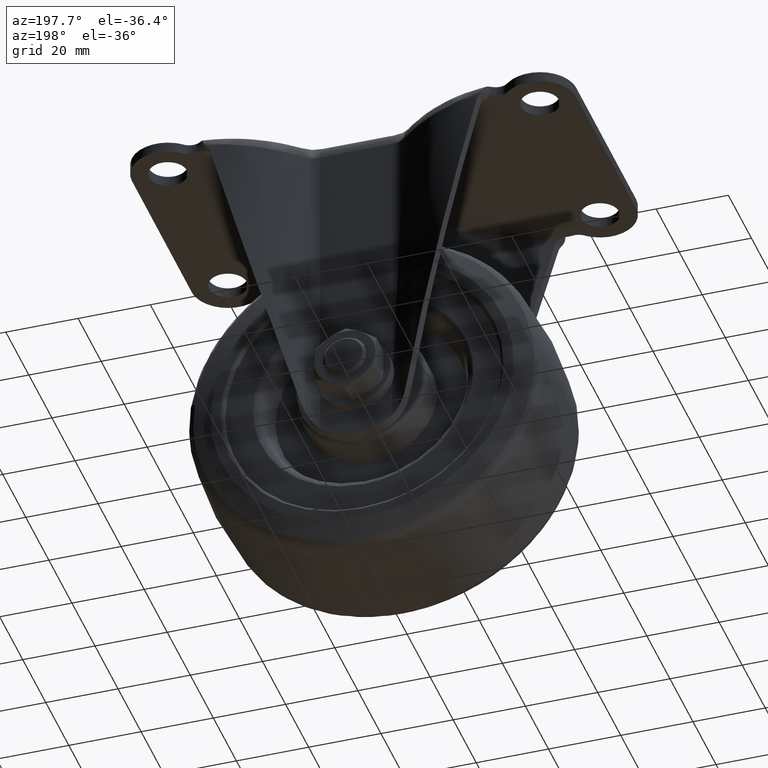
[diagram: clean part render]
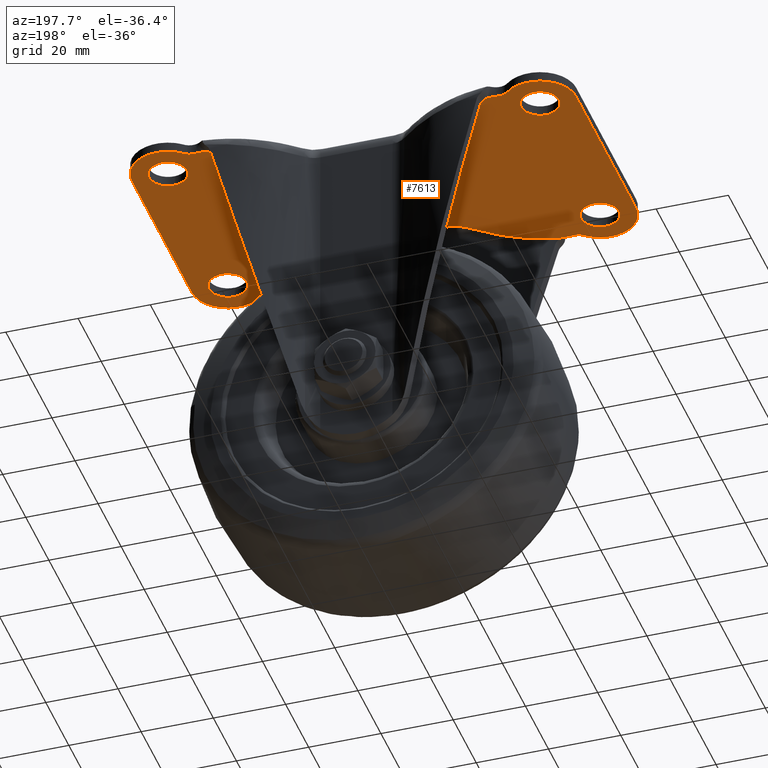
[diagram: same view with one face highlighted and labeled with its STEP entity id]
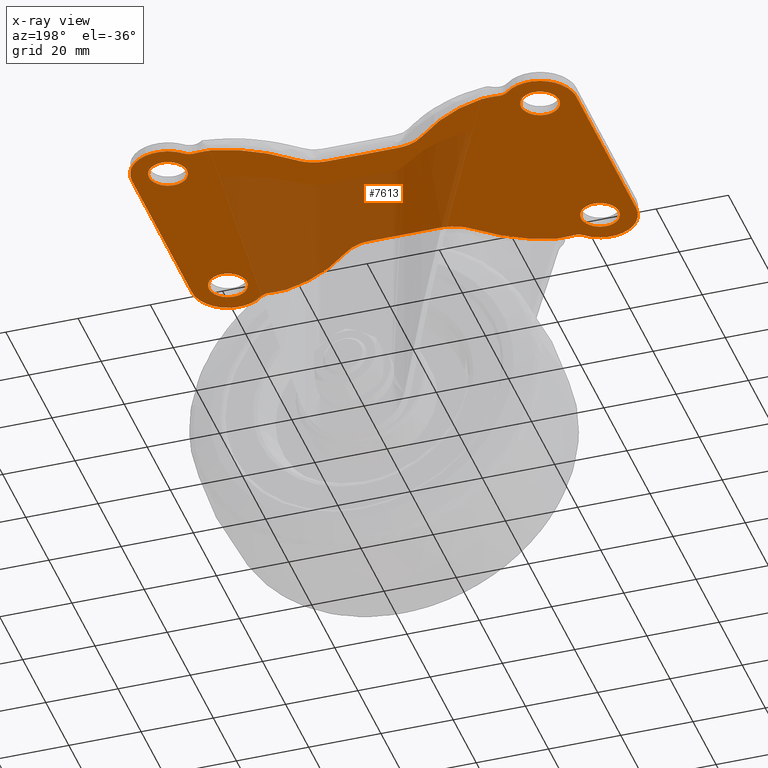
[diagram: x-ray of the same camera — body ghosted, the highlighted face saturated]
A machine part, auxiliary view. The second image highlights one B-rep face of the part: STEP entity #7613.
The next image is the same camera in x-ray: the body ghosted, the highlighted face saturated — about 35% of this face is hidden behind the body in this view.
In plain terms, the highlighted face is a freeform B-spline surface patch.
Its self-contained STEP definition (entity closure, byte-faithful):
#3579=CARTESIAN_POINT('',(-51.179495167164532,31.240207691697830,-2.900000000000000));
#3580=VERTEX_POINT('',#3579);
#3586=CARTESIAN_POINT('',(-46.250000000000000,26.0,-2.900000000000000));
#3587=VERTEX_POINT('',#3586);
#3588=CARTESIAN_POINT('',(-46.250000000000000,26.0,-2.900000000000000));
#3589=CARTESIAN_POINT('',(-46.250000000000000,30.938706850992908,-2.900000000000000));
#3590=CARTESIAN_POINT('',(-51.179495167164539,31.240207691697826,-2.900000000000000));
#3598=(BOUNDED_CURVE()B_SPLINE_CURVE(2,(#3588,#3589,#3590),.UNSPECIFIED.,.F.,.U.)B_SPLINE_CURVE_WITH_KNOTS((3,3),(0.500000000000000,0.739332962232832),.UNSPECIFIED.)CURVE()GEOMETRIC_REPRESENTATION_ITEM()RATIONAL_B_SPLINE_CURVE((1.0,0.719603993293870,0.976072041653621))REPRESENTATION_ITEM(''));
#3599=EDGE_CURVE('',#3587,#3580,#3598,.T.);
#3601=CARTESIAN_POINT('',(-51.820504832835468,20.759792308302170,-2.900000000000000));
#3602=VERTEX_POINT('',#3601);
#3603=CARTESIAN_POINT('',(-51.820504832835468,20.759792308302170,-2.900000000000000));
#3604=CARTESIAN_POINT('',(-51.660402007456717,20.749999999999993,-2.900000000000000));
#3605=CARTESIAN_POINT('',(-51.500000000000000,20.750000000000000,-2.900000000000000));
#3606=CARTESIAN_POINT('',(-46.249999999999993,20.750000000000000,-2.900000000000001));
#3607=CARTESIAN_POINT('',(-46.250000000000000,26.0,-2.900000000000000));
#3615=(BOUNDED_CURVE()B_SPLINE_CURVE(2,(#3603,#3604,#3605,#3606,#3607),.UNSPECIFIED.,.F.,.U.)B_SPLINE_CURVE_WITH_KNOTS((3,2,3),(0.239332962232832,0.250000000000000,0.500000000000000),.UNSPECIFIED.)CURVE()GEOMETRIC_REPRESENTATION_ITEM()RATIONAL_B_SPLINE_CURVE((0.976072041653621,0.987502787892678,1.0,0.707106781186547,1.0))REPRESENTATION_ITEM(''));
#3616=EDGE_CURVE('',#3602,#3587,#3615,.T.);
#3660=CARTESIAN_POINT('',(-56.749999999999993,26.0,-2.900000000000000));
#3661=VERTEX_POINT('',#3660);
#3662=CARTESIAN_POINT('',(-56.749999999999993,26.0,-2.900000000000000));
#3663=CARTESIAN_POINT('',(-56.749999999999986,21.061293149007096,-2.900000000000001));
#3664=CARTESIAN_POINT('',(-51.820504832835468,20.759792308302167,-2.900000000000001));
#3672=(BOUNDED_CURVE()B_SPLINE_CURVE(2,(#3662,#3663,#3664),.UNSPECIFIED.,.F.,.U.)B_SPLINE_CURVE_WITH_KNOTS((3,3),(0.0,0.239332962232832),.UNSPECIFIED.)CURVE()GEOMETRIC_REPRESENTATION_ITEM()RATIONAL_B_SPLINE_CURVE((1.0,0.719603993293869,0.976072041653621))REPRESENTATION_ITEM(''));
#3673=EDGE_CURVE('',#3661,#3602,#3672,.T.);
#3675=CARTESIAN_POINT('',(-51.179495167164539,31.240207691697833,-2.900000000000000));
#3676=CARTESIAN_POINT('',(-51.339597992543283,31.250000000000000,-2.900000000000000));
#3677=CARTESIAN_POINT('',(-51.500000000000000,31.250000000000000,-2.900000000000000));
#3678=CARTESIAN_POINT('',(-56.749999999999993,31.250000000000004,-2.900000000000001));
#3679=CARTESIAN_POINT('',(-56.749999999999993,26.0,-2.900000000000000));
#3687=(BOUNDED_CURVE()B_SPLINE_CURVE(2,(#3675,#3676,#3677,#3678,#3679),.UNSPECIFIED.,.F.,.U.)B_SPLINE_CURVE_WITH_KNOTS((3,2,3),(0.739332962232832,0.750000000000000,1.0),.UNSPECIFIED.)CURVE()GEOMETRIC_REPRESENTATION_ITEM()RATIONAL_B_SPLINE_CURVE((0.976072041653621,0.987502787892678,1.0,0.707106781186547,1.0))REPRESENTATION_ITEM(''));
#3688=EDGE_CURVE('',#3580,#3661,#3687,.T.);
#3761=CARTESIAN_POINT('',(-51.179495167164532,-20.759792308302170,-2.900000000000000));
#3762=VERTEX_POINT('',#3761);
#3768=CARTESIAN_POINT('',(-46.250000000000000,-26.0,-2.900000000000000));
#3769=VERTEX_POINT('',#3768);
#3770=CARTESIAN_POINT('',(-46.250000000000000,-26.0,-2.900000000000000));
#3771=CARTESIAN_POINT('',(-46.250000000000000,-21.061293149007092,-2.900000000000000));
#3772=CARTESIAN_POINT('',(-51.179495167164539,-20.759792308302170,-2.900000000000000));
#3780=(BOUNDED_CURVE()B_SPLINE_CURVE(2,(#3770,#3771,#3772),.UNSPECIFIED.,.F.,.U.)B_SPLINE_CURVE_WITH_KNOTS((3,3),(0.500000000000000,0.739332962232832),.UNSPECIFIED.)CURVE()GEOMETRIC_REPRESENTATION_ITEM()RATIONAL_B_SPLINE_CURVE((1.0,0.719603993293870,0.976072041653621))REPRESENTATION_ITEM(''));
#3781=EDGE_CURVE('',#3769,#3762,#3780,.T.);
#3783=CARTESIAN_POINT('',(-51.820504832835468,-31.240207691697830,-2.900000000000000));
#3784=VERTEX_POINT('',#3783);
#3785=CARTESIAN_POINT('',(-51.820504832835468,-31.240207691697826,-2.900000000000000));
#3786=CARTESIAN_POINT('',(-51.660402007456717,-31.250000000000000,-2.900000000000000));
#3787=CARTESIAN_POINT('',(-51.500000000000000,-31.250000000000000,-2.900000000000000));
#3788=CARTESIAN_POINT('',(-46.249999999999993,-31.250000000000004,-2.900000000000001));
#3789=CARTESIAN_POINT('',(-46.250000000000000,-26.0,-2.900000000000000));
#3797=(BOUNDED_CURVE()B_SPLINE_CURVE(2,(#3785,#3786,#3787,#3788,#3789),.UNSPECIFIED.,.F.,.U.)B_SPLINE_CURVE_WITH_KNOTS((3,2,3),(0.239332962232832,0.250000000000000,0.500000000000000),.UNSPECIFIED.)CURVE()GEOMETRIC_REPRESENTATION_ITEM()RATIONAL_B_SPLINE_CURVE((0.976072041653621,0.987502787892678,1.0,0.707106781186547,1.0))REPRESENTATION_ITEM(''));
#3798=EDGE_CURVE('',#3784,#3769,#3797,.T.);
#3842=CARTESIAN_POINT('',(-56.749999999999993,-26.0,-2.900000000000000));
#3843=VERTEX_POINT('',#3842);
#3844=CARTESIAN_POINT('',(-56.749999999999993,-26.0,-2.900000000000000));
#3845=CARTESIAN_POINT('',(-56.749999999999986,-30.938706850992904,-2.900000000000001));
#3846=CARTESIAN_POINT('',(-51.820504832835482,-31.240207691697840,-2.900000000000001));
#3854=(BOUNDED_CURVE()B_SPLINE_CURVE(2,(#3844,#3845,#3846),.UNSPECIFIED.,.F.,.U.)B_SPLINE_CURVE_WITH_KNOTS((3,3),(0.0,0.239332962232832),.UNSPECIFIED.)CURVE()GEOMETRIC_REPRESENTATION_ITEM()RATIONAL_B_SPLINE_CURVE((1.0,0.719603993293869,0.976072041653621))REPRESENTATION_ITEM(''));
#3855=EDGE_CURVE('',#3843,#3784,#3854,.T.);
#3857=CARTESIAN_POINT('',(-51.179495167164539,-20.759792308302170,-2.900000000000000));
#3858=CARTESIAN_POINT('',(-51.339597992543283,-20.750000000000000,-2.900000000000000));
#3859=CARTESIAN_POINT('',(-51.500000000000000,-20.750000000000000,-2.900000000000000));
#3860=CARTESIAN_POINT('',(-56.749999999999993,-20.750000000000000,-2.900000000000001));
#3861=CARTESIAN_POINT('',(-56.749999999999993,-26.0,-2.900000000000000));
#3869=(BOUNDED_CURVE()B_SPLINE_CURVE(2,(#3857,#3858,#3859,#3860,#3861),.UNSPECIFIED.,.F.,.U.)B_SPLINE_CURVE_WITH_KNOTS((3,2,3),(0.739332962232832,0.750000000000000,1.0),.UNSPECIFIED.)CURVE()GEOMETRIC_REPRESENTATION_ITEM()RATIONAL_B_SPLINE_CURVE((0.976072041653621,0.987502787892678,1.0,0.707106781186547,1.0))REPRESENTATION_ITEM(''));
#3870=EDGE_CURVE('',#3762,#3843,#3869,.T.);
#3943=CARTESIAN_POINT('',(51.820504832835468,31.240207691697830,-2.900000000000000));
#3944=VERTEX_POINT('',#3943);
#3950=CARTESIAN_POINT('',(56.749999999999993,26.0,-2.900000000000000));
#3951=VERTEX_POINT('',#3950);
#3952=CARTESIAN_POINT('',(56.749999999999993,26.0,-2.900000000000000));
#3953=CARTESIAN_POINT('',(56.750000000000007,30.938706850992908,-2.900000000000000));
#3954=CARTESIAN_POINT('',(51.820504832835468,31.240207691697826,-2.900000000000000));
#3962=(BOUNDED_CURVE()B_SPLINE_CURVE(2,(#3952,#3953,#3954),.UNSPECIFIED.,.F.,.U.)B_SPLINE_CURVE_WITH_KNOTS((3,3),(0.500000000000000,0.739332962232832),.UNSPECIFIED.)CURVE()GEOMETRIC_REPRESENTATION_ITEM()RATIONAL_B_SPLINE_CURVE((1.0,0.719603993293870,0.976072041653621))REPRESENTATION_ITEM(''));
#3963=EDGE_CURVE('',#3951,#3944,#3962,.T.);
#3965=CARTESIAN_POINT('',(51.179495167164532,20.759792308302170,-2.900000000000000));
#3966=VERTEX_POINT('',#3965);
#3967=CARTESIAN_POINT('',(51.179495167164532,20.759792308302167,-2.900000000000000));
#3968=CARTESIAN_POINT('',(51.339597992543283,20.749999999999993,-2.900000000000000));
#3969=CARTESIAN_POINT('',(51.500000000000000,20.750000000000000,-2.900000000000000));
#3970=CARTESIAN_POINT('',(56.749999999999993,20.750000000000000,-2.900000000000001));
#3971=CARTESIAN_POINT('',(56.749999999999993,26.0,-2.900000000000000));
#3979=(BOUNDED_CURVE()B_SPLINE_CURVE(2,(#3967,#3968,#3969,#3970,#3971),.UNSPECIFIED.,.F.,.U.)B_SPLINE_CURVE_WITH_KNOTS((3,2,3),(0.239332962232832,0.250000000000000,0.500000000000000),.UNSPECIFIED.)CURVE()GEOMETRIC_REPRESENTATION_ITEM()RATIONAL_B_SPLINE_CURVE((0.976072041653621,0.987502787892678,1.0,0.707106781186547,1.0))REPRESENTATION_ITEM(''));
#3980=EDGE_CURVE('',#3966,#3951,#3979,.T.);
#4024=CARTESIAN_POINT('',(46.250000000000000,26.0,-2.900000000000000));
#4025=VERTEX_POINT('',#4024);
#4026=CARTESIAN_POINT('',(46.250000000000000,26.0,-2.900000000000000));
#4027=CARTESIAN_POINT('',(46.250000000000000,21.061293149007106,-2.900000000000000));
#4028=CARTESIAN_POINT('',(51.179495167164518,20.759792308302167,-2.900000000000000));
#4036=(BOUNDED_CURVE()B_SPLINE_CURVE(2,(#4026,#4027,#4028),.UNSPECIFIED.,.F.,.U.)B_SPLINE_CURVE_WITH_KNOTS((3,3),(0.0,0.239332962232831),.UNSPECIFIED.)CURVE()GEOMETRIC_REPRESENTATION_ITEM()RATIONAL_B_SPLINE_CURVE((1.0,0.719603993293870,0.976072041653620))REPRESENTATION_ITEM(''));
#4037=EDGE_CURVE('',#4025,#3966,#4036,.T.);
#4039=CARTESIAN_POINT('',(51.820504832835468,31.240207691697830,-2.900000000000001));
#4040=CARTESIAN_POINT('',(51.660402007456725,31.250000000000004,-2.900000000000000));
#4041=CARTESIAN_POINT('',(51.500000000000000,31.250000000000000,-2.900000000000000));
#4042=CARTESIAN_POINT('',(46.249999999999993,31.250000000000004,-2.900000000000001));
#4043=CARTESIAN_POINT('',(46.250000000000000,26.0,-2.900000000000000));
#4051=(BOUNDED_CURVE()B_SPLINE_CURVE(2,(#4039,#4040,#4041,#4042,#4043),.UNSPECIFIED.,.F.,.U.)B_SPLINE_CURVE_WITH_KNOTS((3,2,3),(0.739332962232832,0.750000000000000,1.0),.UNSPECIFIED.)CURVE()GEOMETRIC_REPRESENTATION_ITEM()RATIONAL_B_SPLINE_CURVE((0.976072041653621,0.987502787892678,1.0,0.707106781186547,1.0))REPRESENTATION_ITEM(''));
#4052=EDGE_CURVE('',#3944,#4025,#4051,.T.);
#4125=CARTESIAN_POINT('',(51.820504832835468,-20.759792308302170,-2.900000000000000));
#4126=VERTEX_POINT('',#4125);
#4132=CARTESIAN_POINT('',(56.749999999999993,-26.0,-2.900000000000000));
#4133=VERTEX_POINT('',#4132);
#4134=CARTESIAN_POINT('',(56.749999999999993,-26.0,-2.900000000000000));
#4135=CARTESIAN_POINT('',(56.749999999999986,-21.061293149007096,-2.900000000000001));
#4136=CARTESIAN_POINT('',(51.820504832835468,-20.759792308302167,-2.900000000000001));
#4144=(BOUNDED_CURVE()B_SPLINE_CURVE(2,(#4134,#4135,#4136),.UNSPECIFIED.,.F.,.U.)B_SPLINE_CURVE_WITH_KNOTS((3,3),(0.500000000000000,0.739332962232832),.UNSPECIFIED.)CURVE()GEOMETRIC_REPRESENTATION_ITEM()RATIONAL_B_SPLINE_CURVE((1.0,0.719603993293869,0.976072041653621))REPRESENTATION_ITEM(''));
#4145=EDGE_CURVE('',#4133,#4126,#4144,.T.);
#4147=CARTESIAN_POINT('',(51.179495167164532,-31.240207691697830,-2.900000000000000));
#4148=VERTEX_POINT('',#4147);
#4149=CARTESIAN_POINT('',(51.179495167164518,-31.240207691697833,-2.900000000000000));
#4150=CARTESIAN_POINT('',(51.339597992543275,-31.250000000000000,-2.900000000000001));
#4151=CARTESIAN_POINT('',(51.500000000000000,-31.250000000000000,-2.900000000000000));
#4152=CARTESIAN_POINT('',(56.749999999999993,-31.250000000000004,-2.900000000000001));
#4153=CARTESIAN_POINT('',(56.749999999999993,-26.0,-2.900000000000000));
#4161=(BOUNDED_CURVE()B_SPLINE_CURVE(2,(#4149,#4150,#4151,#4152,#4153),.UNSPECIFIED.,.F.,.U.)B_SPLINE_CURVE_WITH_KNOTS((3,2,3),(0.239332962232831,0.250000000000000,0.500000000000000),.UNSPECIFIED.)CURVE()GEOMETRIC_REPRESENTATION_ITEM()RATIONAL_B_SPLINE_CURVE((0.976072041653620,0.987502787892677,1.0,0.707106781186547,1.0))REPRESENTATION_ITEM(''));
#4162=EDGE_CURVE('',#4148,#4133,#4161,.T.);
#4206=CARTESIAN_POINT('',(46.250000000000000,-26.0,-2.900000000000000));
#4207=VERTEX_POINT('',#4206);
#4208=CARTESIAN_POINT('',(46.250000000000000,-26.0,-2.900000000000000));
#4209=CARTESIAN_POINT('',(46.249999999999986,-30.938706850992890,-2.900000000000000));
#4210=CARTESIAN_POINT('',(51.179495167164525,-31.240207691697830,-2.899999999999999));
#4218=(BOUNDED_CURVE()B_SPLINE_CURVE(2,(#4208,#4209,#4210),.UNSPECIFIED.,.F.,.U.)B_SPLINE_CURVE_WITH_KNOTS((3,3),(0.0,0.239332962232831),.UNSPECIFIED.)CURVE()GEOMETRIC_REPRESENTATION_ITEM()RATIONAL_B_SPLINE_CURVE((1.0,0.719603993293870,0.976072041653620))REPRESENTATION_ITEM(''));
#4219=EDGE_CURVE('',#4207,#4148,#4218,.T.);
#4221=CARTESIAN_POINT('',(51.820504832835468,-20.759792308302167,-2.900000000000001));
#4222=CARTESIAN_POINT('',(51.660402007456725,-20.749999999999989,-2.900000000000000));
#4223=CARTESIAN_POINT('',(51.500000000000000,-20.750000000000000,-2.900000000000000));
#4224=CARTESIAN_POINT('',(46.249999999999993,-20.750000000000000,-2.900000000000001));
#4225=CARTESIAN_POINT('',(46.250000000000000,-26.0,-2.900000000000000));
#4233=(BOUNDED_CURVE()B_SPLINE_CURVE(2,(#4221,#4222,#4223,#4224,#4225),.UNSPECIFIED.,.F.,.U.)B_SPLINE_CURVE_WITH_KNOTS((3,2,3),(0.739332962232832,0.750000000000000,1.0),.UNSPECIFIED.)CURVE()GEOMETRIC_REPRESENTATION_ITEM()RATIONAL_B_SPLINE_CURVE((0.976072041653621,0.987502787892678,1.0,0.707106781186547,1.0))REPRESENTATION_ITEM(''));
#4234=EDGE_CURVE('',#4126,#4207,#4233,.T.);
#4769=CARTESIAN_POINT('',(-61.500000000000000,-26.0,-2.900000000000000));
#4770=VERTEX_POINT('',#4769);
#4776=CARTESIAN_POINT('',(-44.782090500815002,-33.407407390839403,-2.900000000000000));
#4777=VERTEX_POINT('',#4776);
#4778=CARTESIAN_POINT('',(-61.500000000000000,-26.0,-2.900000000000000));
#4779=CARTESIAN_POINT('',(-61.500018971375987,-26.510752737996810,-2.899999999999992));
#4780=CARTESIAN_POINT('',(-61.412384804026409,-27.652442663161651,-2.900000000000024));
#4781=CARTESIAN_POINT('',(-61.012601018629837,-29.232316272197131,-2.899999999999987));
#4782=CARTESIAN_POINT('',(-60.405779209941812,-30.610809201152779,-2.900000000000014));
#4783=CARTESIAN_POINT('',(-59.547322561942892,-32.026124475504503,-2.899999999999995));
#4784=CARTESIAN_POINT('',(-58.209312437516147,-33.548589030749611,-2.899999999999991));
#4785=CARTESIAN_POINT('',(-56.442415313799657,-34.773918745355878,-2.900000000000014));
#4786=CARTESIAN_POINT('',(-54.807297769963192,-35.471839446546923,-2.899999999999962));
#4787=CARTESIAN_POINT('',(-53.354220417446669,-35.864462137821548,-2.900000000000017));
#4788=CARTESIAN_POINT('',(-51.916378997705699,-36.030734278966293,-2.899999999999996));
#4789=CARTESIAN_POINT('',(-50.050626468176972,-35.959816644470550,-2.899999999999989));
#4790=CARTESIAN_POINT('',(-48.311715685138608,-35.549224695947487,-2.900000000000035));
#4791=CARTESIAN_POINT('',(-46.395255839888939,-34.669690864453990,-2.899999999999936));
#4792=CARTESIAN_POINT('',(-45.360613352690521,-33.932331198632617,-2.900000000000072));
#4793=CARTESIAN_POINT('',(-44.782090500815002,-33.407407390839403,-2.900000000000000));
#4794=B_SPLINE_CURVE_WITH_KNOTS('',3,(#4778,#4779,#4780,#4781,#4782,#4783,#4784,#4785,#4786,#4787,#4788,#4789,#4790,#4791,#4792,#4793),.UNSPECIFIED.,.F.,.U.,(4,1,1,1,1,1,1,1,1,1,1,1,1,4),(0.000000096518562,1.532265522446050,3.425071992243041,4.867219294183055,6.038975344894201,8.382467245532787,10.906268307156751,12.438451621372691,13.700301791654409,15.412870520723340,16.764903658515170,19.288687747871450,20.730806184796428,23.074280991555870),.UNSPECIFIED.);
#4795=EDGE_CURVE('',#4770,#4777,#4794,.T.);
#4819=CARTESIAN_POINT('',(-41.850692570365297,-32.548413430772598,-2.900000000000000));
#4820=VERTEX_POINT('',#4819);
#4878=CARTESIAN_POINT('',(-41.850692570365283,-32.548413430772477,-2.900000000000000));
#4879=CARTESIAN_POINT('',(-43.524695512233720,-32.267053438086506,-2.900000000000000));
#4880=CARTESIAN_POINT('',(-44.782090500815052,-33.407407390839339,-2.900000000000000));
#4888=(BOUNDED_CURVE()B_SPLINE_CURVE(2,(#4878,#4879,#4880),.UNSPECIFIED.,.F.,.U.)CURVE()GEOMETRIC_REPRESENTATION_ITEM()QUASI_UNIFORM_CURVE()RATIONAL_B_SPLINE_CURVE((1.0,0.899762276426429,1.0))REPRESENTATION_ITEM(''));
#4889=EDGE_CURVE('',#4820,#4777,#4888,.T.);
#4934=CARTESIAN_POINT('',(-44.782089997670951,33.407407454744998,-2.900000000000000));
#4935=VERTEX_POINT('',#4934);
#4941=CARTESIAN_POINT('',(-61.500000000000000,26.0,-2.900000000000000));
#4942=VERTEX_POINT('',#4941);
#4943=CARTESIAN_POINT('',(-44.782089997670951,33.407407454744998,-2.900000000000000));
#4944=CARTESIAN_POINT('',(-45.360608258281623,33.932315119793799,-2.900000000000000));
#4945=CARTESIAN_POINT('',(-46.518402502942443,34.757542285636731,-2.899999999999995));
#4946=CARTESIAN_POINT('',(-48.513246293868441,35.619078762213668,-2.900000000000009));
#4947=CARTESIAN_POINT('',(-50.439269690099657,36.010113402552342,-2.899999999999981));
#4948=CARTESIAN_POINT('',(-52.489839492478367,36.014290344977148,-2.900000000000017));
#4949=CARTESIAN_POINT('',(-54.210463893641467,35.680228240128550,-2.899999999999990));
#4950=CARTESIAN_POINT('',(-56.009047358847063,34.987792846351589,-2.900000000000012));
#4951=CARTESIAN_POINT('',(-57.583530422302367,34.027295820543202,-2.899999999999970));
#4952=CARTESIAN_POINT('',(-59.034021206786832,32.662122329708538,-2.900000000000072));
#4953=CARTESIAN_POINT('',(-59.994934081755808,31.346696994736369,-2.899999999999962));
#4954=CARTESIAN_POINT('',(-60.678769934324023,30.040114751135931,-2.900000000000025));
#4955=CARTESIAN_POINT('',(-61.301298611736172,28.343307646309761,-2.899999999999977));
#4956=CARTESIAN_POINT('',(-61.500305206591108,26.931416183795228,-2.900000000000015));
#4957=CARTESIAN_POINT('',(-61.500000000000000,26.0,-2.900000000000000));
#4958=B_SPLINE_CURVE_WITH_KNOTS('',3,(#4943,#4944,#4945,#4946,#4947,#4948,#4949,#4950,#4951,#4952,#4953,#4954,#4955,#4956,#4957),.UNSPECIFIED.,.F.,.U.,(4,1,1,1,1,1,1,1,1,1,1,1,4),(0.000000243691758,2.343450333649990,4.236273490225326,6.489651626792050,8.202215441769457,10.365402415835471,11.717354827832359,13.970722222849931,15.863549736871221,17.666249067284081,18.838010938831509,20.280138981631229,23.074281322193940),.UNSPECIFIED.);
#4959=EDGE_CURVE('',#4935,#4942,#4958,.T.);
#4980=CARTESIAN_POINT('',(-61.500000000000000,-26.0,-2.900000000000000));
#4981=CARTESIAN_POINT('',(-61.500000000000000,26.0,-2.900000000000000));
#4982=QUASI_UNIFORM_CURVE('',1,(#4980,#4981),.UNSPECIFIED.,.F.,.U.);
#4983=EDGE_CURVE('',#4770,#4942,#4982,.T.);
#6012=CARTESIAN_POINT('',(-39.407153954066636,-32.597138712194500,-2.900000000000000));
#6013=VERTEX_POINT('',#6012);
#6014=CARTESIAN_POINT('',(-39.407153954066636,-32.597138712194500,-2.900000000000000));
#6015=CARTESIAN_POINT('',(-39.508982163163331,-32.595815601449139,-2.900000000000000));
#6016=CARTESIAN_POINT('',(-39.610882864152529,-32.598127908162382,-2.900000000000000));
#6017=CARTESIAN_POINT('',(-39.814732249263621,-32.605158841967587,-2.900000000000000));
#6018=CARTESIAN_POINT('',(-39.916682065822968,-32.609934260003193,-2.900000000000000));
#6019=CARTESIAN_POINT('',(-40.222524087544031,-32.623888007284833,-2.900000000000000));
#6020=CARTESIAN_POINT('',(-40.426404683294599,-32.632484132723683,-2.900000000000000));
#6021=CARTESIAN_POINT('',(-40.833906009214587,-32.636644307354040,-2.900000000000000));
#6022=CARTESIAN_POINT('',(-41.037530646299643,-32.632404285620403,-2.900000000000000));
#6023=CARTESIAN_POINT('',(-41.444408716582473,-32.605308628109498,-2.900000000000000));
#6024=CARTESIAN_POINT('',(-41.647663839309452,-32.582537721032942,-2.900000000000001));
#6025=CARTESIAN_POINT('',(-41.850692570365297,-32.548413430772598,-2.900000000000000));
#6026=B_SPLINE_CURVE_WITH_KNOTS('',3,(#6014,#6015,#6016,#6017,#6018,#6019,#6020,#6021,#6022,#6023,#6024,#6025),.UNSPECIFIED.,.F.,.U.,(4,2,2,2,2,4),(0.0,0.124999999999997,0.249999999999994,0.499999999999996,0.749999999999998,1.0),.UNSPECIFIED.);
#6027=EDGE_CURVE('',#6013,#4820,#6026,.T.);
#6367=CARTESIAN_POINT('',(41.850691448218697,-32.548413451302551,-2.900000000000000));
#6368=VERTEX_POINT('',#6367);
#6400=CARTESIAN_POINT('',(39.407152954066802,-32.597138725188053,-2.900000000000000));
#6401=VERTEX_POINT('',#6400);
#6416=CARTESIAN_POINT('',(41.850691448218697,-32.548413451302551,-2.900000000000000));
#6417=CARTESIAN_POINT('',(41.648967275674707,-32.582318483713152,-2.900000000000000));
#6418=CARTESIAN_POINT('',(41.446451368427141,-32.605102452452613,-2.900000000000000));
#6419=CARTESIAN_POINT('',(41.040111841107368,-32.632301664245063,-2.900000000000000));
#6420=CARTESIAN_POINT('',(40.836267213440877,-32.636630903643443,-2.900000000000000));
#6421=CARTESIAN_POINT('',(40.427730021254327,-32.632534920979282,-2.900000000000000));
#6422=CARTESIAN_POINT('',(40.223660784744837,-32.623939011623882,-2.900000000000000));
#6423=CARTESIAN_POINT('',(39.917589475604217,-32.609976194338657,-2.900000000000000));
#6424=CARTESIAN_POINT('',(39.815569603980840,-32.605193890068300,-2.899999999999999));
#6425=CARTESIAN_POINT('',(39.611453370900733,-32.598141571876937,-2.900000000000000));
#6426=CARTESIAN_POINT('',(39.509358862042284,-32.595810709805477,-2.900000000000000));
#6427=CARTESIAN_POINT('',(39.407152954066802,-32.597138725187349,-2.900000000000000));
#6428=B_SPLINE_CURVE_WITH_KNOTS('',3,(#6416,#6417,#6418,#6419,#6420,#6421,#6422,#6423,#6424,#6425,#6426,#6427),.UNSPECIFIED.,.F.,.U.,(4,2,2,2,2,4),(0.0,0.250000000000000,0.500000000000000,0.750000000000000,0.875000000000000,1.0),.UNSPECIFIED.);
#6429=EDGE_CURVE('',#6368,#6401,#6428,.T.);
#6550=CARTESIAN_POINT('',(37.500000030724600,-32.568254887390999,-2.900000000000120));
#6551=VERTEX_POINT('',#6550);
#6552=CARTESIAN_POINT('',(17.444356074022949,-21.563408115553852,-2.900000000000000));
#6553=VERTEX_POINT('',#6552);
#6554=CARTESIAN_POINT('',(37.500000030724600,-32.568254887390999,-2.900000000000120));
#6555=CARTESIAN_POINT('',(26.877184140900500,-30.442970785342052,-2.900000000000000));
#6556=CARTESIAN_POINT('',(17.444356074022949,-21.563408115553852,-2.900000000000000));
#6557=QUASI_UNIFORM_CURVE('',2,(#6554,#6555,#6556),.UNSPECIFIED.,.F.,.U.);
#6558=EDGE_CURVE('',#6551,#6553,#6557,.T.);
#6624=CARTESIAN_POINT('',(9.973043655194289,-18.600000000000001,-2.900000000000000));
#6625=VERTEX_POINT('',#6624);
#6639=CARTESIAN_POINT('',(17.444356074022959,-21.563408115553852,-2.900000000000000));
#6640=CARTESIAN_POINT('',(14.296400335893907,-18.599999999999994,-2.900000000000000));
#6641=CARTESIAN_POINT('',(9.973043655194289,-18.600000000000001,-2.900000000000000));
#6649=(BOUNDED_CURVE()B_SPLINE_CURVE(2,(#6639,#6640,#6641),.UNSPECIFIED.,.F.,.U.)CURVE()GEOMETRIC_REPRESENTATION_ITEM()QUASI_UNIFORM_CURVE()RATIONAL_B_SPLINE_CURVE((1.0,0.929550347162742,1.0))REPRESENTATION_ITEM(''));
#6650=EDGE_CURVE('',#6553,#6625,#6649,.T.);
#6683=CARTESIAN_POINT('',(-9.973044102620669,-18.600000000000001,-2.900000000000000));
#6684=VERTEX_POINT('',#6683);
#6698=CARTESIAN_POINT('',(9.973043655194289,-18.600000000000001,-2.900000000000000));
#6699=CARTESIAN_POINT('',(-9.973044102620669,-18.600000000000001,-2.900000000000000));
#6700=QUASI_UNIFORM_CURVE('',1,(#6698,#6699),.UNSPECIFIED.,.F.,.U.);
#6701=EDGE_CURVE('',#6625,#6684,#6700,.T.);
#6725=CARTESIAN_POINT('',(-17.444356074022700,-21.563408115553749,-2.900000000000000));
#6726=VERTEX_POINT('',#6725);
#6740=CARTESIAN_POINT('',(-9.973044102620673,-18.600000000000009,-2.900000000000000));
#6741=CARTESIAN_POINT('',(-14.296400524411949,-18.600000177466470,-2.900000000000000));
#6742=CARTESIAN_POINT('',(-17.444356074022689,-21.563408115553749,-2.900000000000000));
#6750=(BOUNDED_CURVE()B_SPLINE_CURVE(2,(#6740,#6741,#6742),.UNSPECIFIED.,.F.,.U.)CURVE()GEOMETRIC_REPRESENTATION_ITEM()QUASI_UNIFORM_CURVE()RATIONAL_B_SPLINE_CURVE((1.0,0.929550354729901,1.0))REPRESENTATION_ITEM(''));
#6751=EDGE_CURVE('',#6684,#6726,#6750,.T.);
#6784=CARTESIAN_POINT('',(-37.500001030724448,-32.568254930698750,-2.900000000000125));
#6785=VERTEX_POINT('',#6784);
#6815=CARTESIAN_POINT('',(-17.444356074022700,-21.563408115553749,-2.900000000000000));
#6816=CARTESIAN_POINT('',(-26.877184462798599,-30.442971088429552,-2.900000000000000));
#6817=CARTESIAN_POINT('',(-37.500001030724448,-32.568254930698750,-2.900000000000000));
#6818=QUASI_UNIFORM_CURVE('',2,(#6815,#6816,#6817),.UNSPECIFIED.,.F.,.U.);
#6819=EDGE_CURVE('',#6726,#6785,#6818,.T.);
#6968=CARTESIAN_POINT('',(-37.500001030724427,-32.568254930698757,-2.900000000000000));
#6969=CARTESIAN_POINT('',(-38.453171038804619,-32.609534344576396,-2.900000000000000));
#6970=CARTESIAN_POINT('',(-39.407153954066629,-32.597138712194479,-2.900000000000000));
#6978=(BOUNDED_CURVE()B_SPLINE_CURVE(2,(#6968,#6969,#6970),.UNSPECIFIED.,.F.,.U.)CURVE()GEOMETRIC_REPRESENTATION_ITEM()QUASI_UNIFORM_CURVE()RATIONAL_B_SPLINE_CURVE((1.0,0.999604190770367,1.0))REPRESENTATION_ITEM(''));
#6979=EDGE_CURVE('',#6785,#6013,#6978,.T.);
#7028=CARTESIAN_POINT('',(39.407152954066802,-32.597138725188017,-2.900000000000000));
#7029=CARTESIAN_POINT('',(38.453170038012352,-32.609534329431426,-2.900000000000000));
#7030=CARTESIAN_POINT('',(37.500000030724600,-32.568254887391248,-2.900000000000000));
#7038=(BOUNDED_CURVE()B_SPLINE_CURVE(2,(#7028,#7029,#7030),.UNSPECIFIED.,.F.,.U.)CURVE()GEOMETRIC_REPRESENTATION_ITEM()QUASI_UNIFORM_CURVE()RATIONAL_B_SPLINE_CURVE((1.0,0.999604190770013,1.0))REPRESENTATION_ITEM(''));
#7039=EDGE_CURVE('',#6401,#6551,#7038,.T.);
#7361=CARTESIAN_POINT('',(-67.643849761602141,39.590585827111262,-2.900000000000000));
#7362=CARTESIAN_POINT('',(67.643853060719209,39.590585827111262,-2.900000000000000));
#7363=CARTESIAN_POINT('',(-67.643849761602141,-39.590587114219190,-2.900000000000000));
#7364=CARTESIAN_POINT('',(67.643853060719209,-39.590587114219190,-2.900000000000000));
#7365=B_SPLINE_SURFACE_WITH_KNOTS('',1,1,((#7361,#7363),(#7362,#7364)),.UNSPECIFIED.,.F.,.F.,.U.,(2,2),(2,2),(0.0,135.287702822321390),(0.0,79.181172941330445),.UNSPECIFIED.);
#7366=CARTESIAN_POINT('',(37.500000030724600,32.568254887391447,-2.900000000000120));
#7367=VERTEX_POINT('',#7366);
#7368=CARTESIAN_POINT('',(39.407152954066802,32.597138725188053,-2.900000000000000));
#7369=VERTEX_POINT('',#7368);
#7370=CARTESIAN_POINT('',(37.500000030724600,32.568254887391447,-2.900000000000120));
#7371=CARTESIAN_POINT('',(38.453170038012352,32.609534329431426,-2.900000000000000));
#7372=CARTESIAN_POINT('',(39.407152954066802,32.597138725188017,-2.900000000000000));
#7380=(BOUNDED_CURVE()B_SPLINE_CURVE(2,(#7370,#7371,#7372),.UNSPECIFIED.,.F.,.U.)CURVE()GEOMETRIC_REPRESENTATION_ITEM()QUASI_UNIFORM_CURVE()RATIONAL_B_SPLINE_CURVE((1.0,0.999604190770013,1.0))REPRESENTATION_ITEM(''));
#7381=EDGE_CURVE('',#7367,#7369,#7380,.T.);
#7382=ORIENTED_EDGE('',*,*,#7381,.T.);
#7383=CARTESIAN_POINT('',(41.850691448218747,32.548413451302551,-2.900000000000000));
#7384=VERTEX_POINT('',#7383);
#7385=CARTESIAN_POINT('',(39.407152954066802,32.597138725188053,-2.900000000000000));
#7386=CARTESIAN_POINT('',(39.508981158127519,32.595815617512741,-2.900000000000001));
#7387=CARTESIAN_POINT('',(39.610881854061390,32.598127926705338,-2.900000000000000));
#7388=CARTESIAN_POINT('',(39.814731229043467,32.605158864801773,-2.900000000000000));
#7389=CARTESIAN_POINT('',(39.916681040528829,32.609934284637248,-2.900000000000000));
#7390=CARTESIAN_POINT('',(40.222523047012793,32.623888036526083,-2.900000000000000));
#7391=CARTESIAN_POINT('',(40.426403632586158,32.632484164002868,-2.900000000000000));
#7392=CARTESIAN_POINT('',(40.833904938135277,32.636644340520967,-2.899999999999999));
#7393=CARTESIAN_POINT('',(41.037529565025991,32.632404318620431,-2.900000000000000));
#7394=CARTESIAN_POINT('',(41.444407614896122,32.605308657624548,-2.900000000000000));
#7395=CARTESIAN_POINT('',(41.647662727404537,32.582537747229367,-2.900000000000000));
#7396=CARTESIAN_POINT('',(41.850691448218747,32.548413451302551,-2.900000000000000));
#7397=B_SPLINE_CURVE_WITH_KNOTS('',3,(#7385,#7386,#7387,#7388,#7389,#7390,#7391,#7392,#7393,#7394,#7395,#7396),.UNSPECIFIED.,.F.,.U.,(4,2,2,2,2,4),(0.0,0.125000000000000,0.250000000000000,0.500000000000000,0.750000000000000,1.0),.UNSPECIFIED.);
#7398=EDGE_CURVE('',#7369,#7384,#7397,.T.);
#7399=ORIENTED_EDGE('',*,*,#7398,.T.);
#7400=CARTESIAN_POINT('',(44.782089500815303,33.407407390839403,-2.900000000000000));
#7401=VERTEX_POINT('',#7400);
#7402=CARTESIAN_POINT('',(41.850691448218747,32.548413451302551,-2.900000000000000));
#7403=CARTESIAN_POINT('',(43.524694455569367,32.267053386696332,-2.900000000000000));
#7404=CARTESIAN_POINT('',(44.782089500815353,33.407407390839332,-2.900000000000000));
#7412=(BOUNDED_CURVE()B_SPLINE_CURVE(2,(#7402,#7403,#7404),.UNSPECIFIED.,.F.,.U.)CURVE()GEOMETRIC_REPRESENTATION_ITEM()QUASI_UNIFORM_CURVE()RATIONAL_B_SPLINE_CURVE((1.0,0.899762268704982,1.0))REPRESENTATION_ITEM(''));
#7413=EDGE_CURVE('',#7384,#7401,#7412,.T.);
#7414=ORIENTED_EDGE('',*,*,#7413,.T.);
#7415=CARTESIAN_POINT('',(61.500000000000000,26.0,-2.900000000000000));
#7416=VERTEX_POINT('',#7415);
#7417=CARTESIAN_POINT('',(61.500000000000000,26.0,-2.900000000000000));
#7418=CARTESIAN_POINT('',(61.500478070812690,26.991519662318460,-2.900000000000012));
#7419=CARTESIAN_POINT('',(61.256625718657062,28.613630070367069,-2.899999999999981));
#7420=CARTESIAN_POINT('',(60.483887434096950,30.482179801518019,-2.900000000000006));
#7421=CARTESIAN_POINT('',(59.625277206662268,31.897391336657549,-2.900000000000009));
#7422=CARTESIAN_POINT('',(58.422136530570739,33.330451370704637,-2.899999999999979));
#7423=CARTESIAN_POINT('',(56.640010207781707,34.689276197621922,-2.900000000000005));
#7424=CARTESIAN_POINT('',(54.867258469756592,35.465044763711639,-2.900000000000001));
#7425=CARTESIAN_POINT('',(53.264344733490972,35.874841082776229,-2.900000000000000));
#7426=CARTESIAN_POINT('',(51.916374692072807,36.030747791811528,-2.899999999999999));
#7427=CARTESIAN_POINT('',(50.140926423319740,35.963185388338353,-2.900000000000001));
#7428=CARTESIAN_POINT('',(48.369857529612162,35.570211685575522,-2.900000000000001));
#7429=CARTESIAN_POINT('',(46.442726362746427,34.706828577071761,-2.900000000000000));
#7430=CARTESIAN_POINT('',(45.338368684198556,33.912098499036411,-2.899999999999994));
#7431=CARTESIAN_POINT('',(44.782089500815303,33.407407390839403,-2.900000000000000));
#7432=B_SPLINE_CURVE_WITH_KNOTS('',3,(#7417,#7418,#7419,#7420,#7421,#7422,#7423,#7424,#7425,#7426,#7427,#7428,#7429,#7430,#7431),.UNSPECIFIED.,.F.,.U.,(4,1,1,1,1,1,1,1,1,1,1,1,4),(0.000000353204481,2.974388945240719,4.867219652660037,6.038975727878640,7.931788317831130,10.455598986605240,12.708864827433850,13.700302334854401,15.412871099738910,16.764904265806699,19.018274675215270,20.820982472472298,23.074281733815472),.UNSPECIFIED.);
#7433=EDGE_CURVE('',#7416,#7401,#7432,.T.);
#7434=ORIENTED_EDGE('',*,*,#7433,.F.);
#7435=CARTESIAN_POINT('',(61.500000000000000,-26.0,-2.900000000000000));
#7436=VERTEX_POINT('',#7435);
#7437=CARTESIAN_POINT('',(61.500000000000000,26.0,-2.900000000000000));
#7438=CARTESIAN_POINT('',(61.500000000000000,-26.0,-2.900000000000000));
#7439=QUASI_UNIFORM_CURVE('',1,(#7437,#7438),.UNSPECIFIED.,.F.,.U.);
#7440=EDGE_CURVE('',#7416,#7436,#7439,.T.);
#7441=ORIENTED_EDGE('',*,*,#7440,.T.);
#7442=CARTESIAN_POINT('',(44.782089997671306,-33.407407454744998,-2.900000000000000));
#7443=VERTEX_POINT('',#7442);
#7444=CARTESIAN_POINT('',(44.782089997671306,-33.407407454744998,-2.900000000000000));
#7445=CARTESIAN_POINT('',(45.160412500469079,-33.750539996209262,-2.899999999999998));
#7446=CARTESIAN_POINT('',(46.064982638883912,-34.452600686254023,-2.900000000000001));
#7447=CARTESIAN_POINT('',(47.637047870388002,-35.288696075080694,-2.899999999999998));
#7448=CARTESIAN_POINT('',(49.223066086623682,-35.778298250079366,-2.900000000000007));
#7449=CARTESIAN_POINT('',(51.069135850758819,-36.050418987634892,-2.899999999999993));
#7450=CARTESIAN_POINT('',(52.915037629263580,-35.979171612624462,-2.899999999999989));
#7451=CARTESIAN_POINT('',(55.104539729105149,-35.408823436856579,-2.900000000000016));
#7452=CARTESIAN_POINT('',(56.915598317375220,-34.496467434928142,-2.899999999999963));
#7453=CARTESIAN_POINT('',(58.301166683890557,-33.379294189020712,-2.900000000000059));
#7454=CARTESIAN_POINT('',(59.304089726093387,-32.298613580782209,-2.899999999999910));
#7455=CARTESIAN_POINT('',(60.228782288054497,-30.996473566204610,-2.900000000000056));
#7456=CARTESIAN_POINT('',(60.950991300162187,-29.432603811704912,-2.899999999999944));
#7457=CARTESIAN_POINT('',(61.402207423919641,-27.682452027023910,-2.900000000000092));
#7458=CARTESIAN_POINT('',(61.500055329500199,-26.600875140287311,-2.899999999999940));
#7459=CARTESIAN_POINT('',(61.500000000000000,-26.0,-2.900000000000000));
#7460=B_SPLINE_CURVE_WITH_KNOTS('',3,(#7444,#7445,#7446,#7447,#7448,#7449,#7450,#7451,#7452,#7453,#7454,#7455,#7456,#7457,#7458,#7459),.UNSPECIFIED.,.F.,.U.,(4,1,1,1,1,1,1,1,1,1,1,1,1,4),(0.000000243857301,1.532265681843729,3.425072166530942,5.317897080879039,6.489651626908639,9.013400594309886,10.816084456337011,13.249626422979629,15.052342417854190,16.133963815522680,17.666249067319630,19.829473204396830,21.271655953706169,23.074281322192910),.UNSPECIFIED.);
#7461=EDGE_CURVE('',#7443,#7436,#7460,.T.);
#7462=ORIENTED_EDGE('',*,*,#7461,.F.);
#7463=CARTESIAN_POINT('',(44.782089997671306,-33.407407454744998,-2.900000000000000));
#7464=CARTESIAN_POINT('',(43.524694705879305,-32.267053344625168,-2.900000000000000));
#7465=CARTESIAN_POINT('',(41.850691448218690,-32.548413451302459,-2.900000000000000));
#7473=(BOUNDED_CURVE()B_SPLINE_CURVE(2,(#7463,#7464,#7465),.UNSPECIFIED.,.F.,.U.)CURVE()GEOMETRIC_REPRESENTATION_ITEM()QUASI_UNIFORM_CURVE()RATIONAL_B_SPLINE_CURVE((1.0,0.899762243084917,1.0))REPRESENTATION_ITEM(''));
#7474=EDGE_CURVE('',#7443,#6368,#7473,.T.);
#7475=ORIENTED_EDGE('',*,*,#7474,.T.);
#7476=ORIENTED_EDGE('',*,*,#6429,.T.);
#7477=ORIENTED_EDGE('',*,*,#7039,.T.);
#7478=ORIENTED_EDGE('',*,*,#6558,.T.);
#7479=ORIENTED_EDGE('',*,*,#6650,.T.);
#7480=ORIENTED_EDGE('',*,*,#6701,.T.);
#7481=ORIENTED_EDGE('',*,*,#6751,.T.);
#7482=ORIENTED_EDGE('',*,*,#6819,.T.);
#7483=ORIENTED_EDGE('',*,*,#6979,.T.);
#7484=ORIENTED_EDGE('',*,*,#6027,.T.);
#7485=ORIENTED_EDGE('',*,*,#4889,.T.);
#7486=ORIENTED_EDGE('',*,*,#4795,.F.);
#7487=ORIENTED_EDGE('',*,*,#4983,.T.);
#7488=ORIENTED_EDGE('',*,*,#4959,.F.);
#7489=CARTESIAN_POINT('',(-41.850692570365297,32.548413430772598,-2.900000000000000));
#7490=VERTEX_POINT('',#7489);
#7491=CARTESIAN_POINT('',(-44.782089997670951,33.407407454744998,-2.900000000000000));
#7492=CARTESIAN_POINT('',(-43.524695311382800,32.267053471844775,-2.900000000000000));
#7493=CARTESIAN_POINT('',(-41.850692570365283,32.548413430772477,-2.900000000000000));
#7501=(BOUNDED_CURVE()B_SPLINE_CURVE(2,(#7491,#7492,#7493),.UNSPECIFIED.,.F.,.U.)CURVE()GEOMETRIC_REPRESENTATION_ITEM()QUASI_UNIFORM_CURVE()RATIONAL_B_SPLINE_CURVE((1.0,0.899762296984192,1.0))REPRESENTATION_ITEM(''));
#7502=EDGE_CURVE('',#4935,#7490,#7501,.T.);
#7503=ORIENTED_EDGE('',*,*,#7502,.T.);
#7504=CARTESIAN_POINT('',(-39.407153954066636,32.597138712194500,-2.900000000000000));
#7505=VERTEX_POINT('',#7504);
#7506=CARTESIAN_POINT('',(-41.850692570365297,32.548413430772598,-2.900000000000000));
#7507=CARTESIAN_POINT('',(-41.648968386987278,32.582318457663710,-2.900000000000000));
#7508=CARTESIAN_POINT('',(-41.446452469212431,32.605102423067713,-2.900000000000000));
#7509=CARTESIAN_POINT('',(-41.040112921309579,32.632301631302198,-2.899999999999999));
#7510=CARTESIAN_POINT('',(-40.836268283604490,32.636630870476793,-2.900000000000000));
#7511=CARTESIAN_POINT('',(-40.427731071612797,32.632534889668229,-2.900000000000000));
#7512=CARTESIAN_POINT('',(-40.223661825055018,32.623938982356542,-2.900000000000000));
#7513=CARTESIAN_POINT('',(-39.917590500776697,32.609976169681453,-2.900000000000000));
#7514=CARTESIAN_POINT('',(-39.815570624097163,32.605193867212073,-2.899999999999999));
#7515=CARTESIAN_POINT('',(-39.611454380926489,32.598141553318101,-2.900000000000000));
#7516=CARTESIAN_POINT('',(-39.509359867032920,32.595810693731323,-2.900000000000001));
#7517=CARTESIAN_POINT('',(-39.407153954066636,32.597138712193797,-2.900000000000000));
#7518=B_SPLINE_CURVE_WITH_KNOTS('',3,(#7506,#7507,#7508,#7509,#7510,#7511,#7512,#7513,#7514,#7515,#7516,#7517),.UNSPECIFIED.,.F.,.U.,(4,2,2,2,2,4),(0.0,0.249999999999998,0.499999999999996,0.749999999999994,0.874999999999997,1.0),.UNSPECIFIED.);
#7519=EDGE_CURVE('',#7490,#7505,#7518,.T.);
#7520=ORIENTED_EDGE('',*,*,#7519,.T.);
#7521=CARTESIAN_POINT('',(-37.500001030724448,32.568254930698750,-2.900000000000125));
#7522=VERTEX_POINT('',#7521);
#7523=CARTESIAN_POINT('',(-39.407153954066636,32.597138712194479,-2.900000000000000));
#7524=CARTESIAN_POINT('',(-38.453171038804655,32.609534344576396,-2.900000000000000));
#7525=CARTESIAN_POINT('',(-37.500001030724448,32.568254930698757,-2.900000000000000));
#7533=(BOUNDED_CURVE()B_SPLINE_CURVE(2,(#7523,#7524,#7525),.UNSPECIFIED.,.F.,.U.)CURVE()GEOMETRIC_REPRESENTATION_ITEM()QUASI_UNIFORM_CURVE()RATIONAL_B_SPLINE_CURVE((1.0,0.999604190770367,1.0))REPRESENTATION_ITEM(''));
#7534=EDGE_CURVE('',#7505,#7522,#7533,.T.);
#7535=ORIENTED_EDGE('',*,*,#7534,.T.);
#7536=CARTESIAN_POINT('',(-17.444356074022700,21.563408115553749,-2.900000000000000));
#7537=VERTEX_POINT('',#7536);
#7538=CARTESIAN_POINT('',(-37.500001030724448,32.568254930698750,-2.900000000000000));
#7539=CARTESIAN_POINT('',(-26.877184462910652,30.442971088504549,-2.900000000000000));
#7540=CARTESIAN_POINT('',(-17.444356074022700,21.563408115553749,-2.900000000000000));
#7541=QUASI_UNIFORM_CURVE('',2,(#7538,#7539,#7540),.UNSPECIFIED.,.F.,.U.);
#7542=EDGE_CURVE('',#7522,#7537,#7541,.T.);
#7543=ORIENTED_EDGE('',*,*,#7542,.T.);
#7544=CARTESIAN_POINT('',(-9.973043655194118,18.600000000000001,-2.900000000000000));
#7545=VERTEX_POINT('',#7544);
#7546=CARTESIAN_POINT('',(-17.444356074022689,21.563408115553749,-2.900000000000000));
#7547=CARTESIAN_POINT('',(-14.296400335893665,18.599999999999998,-2.900000000000000));
#7548=CARTESIAN_POINT('',(-9.973043655194118,18.600000000000001,-2.900000000000000));
#7556=(BOUNDED_CURVE()B_SPLINE_CURVE(2,(#7546,#7547,#7548),.UNSPECIFIED.,.F.,.U.)CURVE()GEOMETRIC_REPRESENTATION_ITEM()QUASI_UNIFORM_CURVE()RATIONAL_B_SPLINE_CURVE((1.0,0.929550347162744,1.0))REPRESENTATION_ITEM(''));
#7557=EDGE_CURVE('',#7537,#7545,#7556,.T.);
#7558=ORIENTED_EDGE('',*,*,#7557,.T.);
#7559=CARTESIAN_POINT('',(9.973043655194289,18.600000000000001,-2.900000000000000));
#7560=VERTEX_POINT('',#7559);
#7561=CARTESIAN_POINT('',(-9.973043655194118,18.600000000000001,-2.900000000000000));
#7562=CARTESIAN_POINT('',(9.973043655194289,18.600000000000001,-2.900000000000000));
#7563=QUASI_UNIFORM_CURVE('',1,(#7561,#7562),.UNSPECIFIED.,.F.,.U.);
#7564=EDGE_CURVE('',#7545,#7560,#7563,.T.);
#7565=ORIENTED_EDGE('',*,*,#7564,.T.);
#7566=CARTESIAN_POINT('',(17.444356074022849,21.563408115553749,-2.900000000000000));
#7567=VERTEX_POINT('',#7566);
#7568=CARTESIAN_POINT('',(9.973043655194289,18.600000000000001,-2.900000000000000));
#7569=CARTESIAN_POINT('',(14.296400335893827,18.599999999999998,-2.900000000000000));
#7570=CARTESIAN_POINT('',(17.444356074022849,21.563408115553749,-2.900000000000000));
#7578=(BOUNDED_CURVE()B_SPLINE_CURVE(2,(#7568,#7569,#7570),.UNSPECIFIED.,.F.,.U.)CURVE()GEOMETRIC_REPRESENTATION_ITEM()QUASI_UNIFORM_CURVE()RATIONAL_B_SPLINE_CURVE((1.0,0.929550347162744,1.0))REPRESENTATION_ITEM(''));
#7579=EDGE_CURVE('',#7560,#7567,#7578,.T.);
#7580=ORIENTED_EDGE('',*,*,#7579,.T.);
#7581=CARTESIAN_POINT('',(17.444356074022849,21.563408115553749,-2.900000000000000));
#7582=CARTESIAN_POINT('',(26.877184140546301,30.442970785271150,-2.900000000000000));
#7583=CARTESIAN_POINT('',(37.500000030724600,32.568254887391248,-2.900000000000000));
#7584=QUASI_UNIFORM_CURVE('',2,(#7581,#7582,#7583),.UNSPECIFIED.,.F.,.U.);
#7585=EDGE_CURVE('',#7567,#7367,#7584,.T.);
#7586=ORIENTED_EDGE('',*,*,#7585,.T.);
#7587=EDGE_LOOP('',(#7382,#7399,#7414,#7434,#7441,#7462,#7475,#7476,#7477,#7478,#7479,#7480,#7481,#7482,#7483,#7484,#7485,#7486,#7487,#7488,#7503,#7520,#7535,#7543,#7558,#7565,#7580,#7586));
#7588=FACE_OUTER_BOUND('',#7587,.T.);
#7589=ORIENTED_EDGE('',*,*,#4145,.T.);
#7590=ORIENTED_EDGE('',*,*,#4234,.T.);
#7591=ORIENTED_EDGE('',*,*,#4219,.T.);
#7592=ORIENTED_EDGE('',*,*,#4162,.T.);
#7593=EDGE_LOOP('',(#7589,#7590,#7591,#7592));
#7594=FACE_BOUND('',#7593,.T.);
#7595=ORIENTED_EDGE('',*,*,#3963,.T.);
#7596=ORIENTED_EDGE('',*,*,#4052,.T.);
#7597=ORIENTED_EDGE('',*,*,#4037,.T.);
#7598=ORIENTED_EDGE('',*,*,#3980,.T.);
#7599=EDGE_LOOP('',(#7595,#7596,#7597,#7598));
#7600=FACE_BOUND('',#7599,.T.);
#7601=ORIENTED_EDGE('',*,*,#3781,.T.);
#7602=ORIENTED_EDGE('',*,*,#3870,.T.);
#7603=ORIENTED_EDGE('',*,*,#3855,.T.);
#7604=ORIENTED_EDGE('',*,*,#3798,.T.);
#7605=EDGE_LOOP('',(#7601,#7602,#7603,#7604));
#7606=FACE_BOUND('',#7605,.T.);
#7607=ORIENTED_EDGE('',*,*,#3599,.T.);
#7608=ORIENTED_EDGE('',*,*,#3688,.T.);
#7609=ORIENTED_EDGE('',*,*,#3673,.T.);
#7610=ORIENTED_EDGE('',*,*,#3616,.T.);
#7611=EDGE_LOOP('',(#7607,#7608,#7609,#7610));
#7612=FACE_BOUND('',#7611,.T.);
#7613=ADVANCED_FACE('',(#7588,#7594,#7600,#7606,#7612),#7365,.T.);